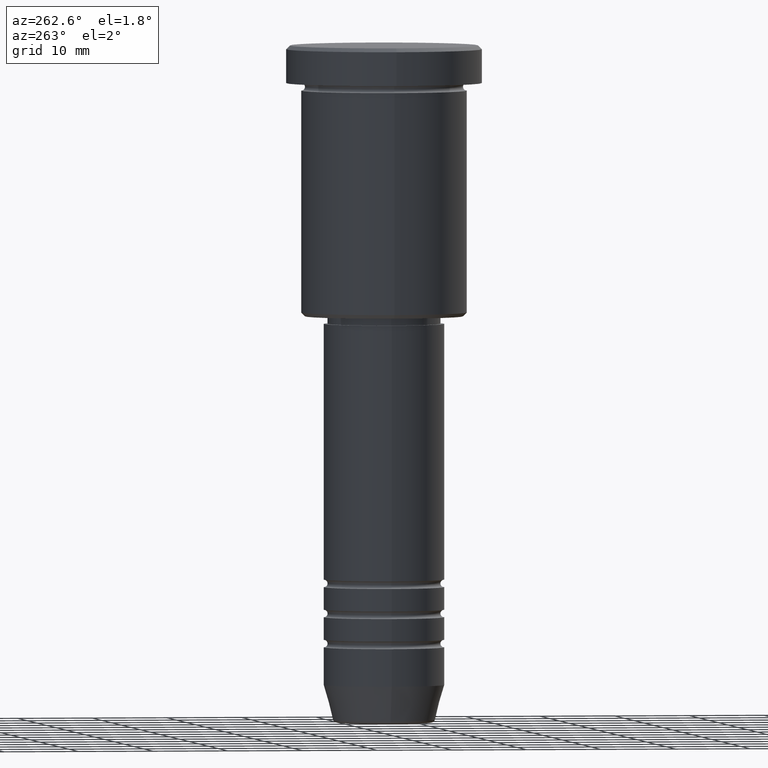
[diagram: clean part render]
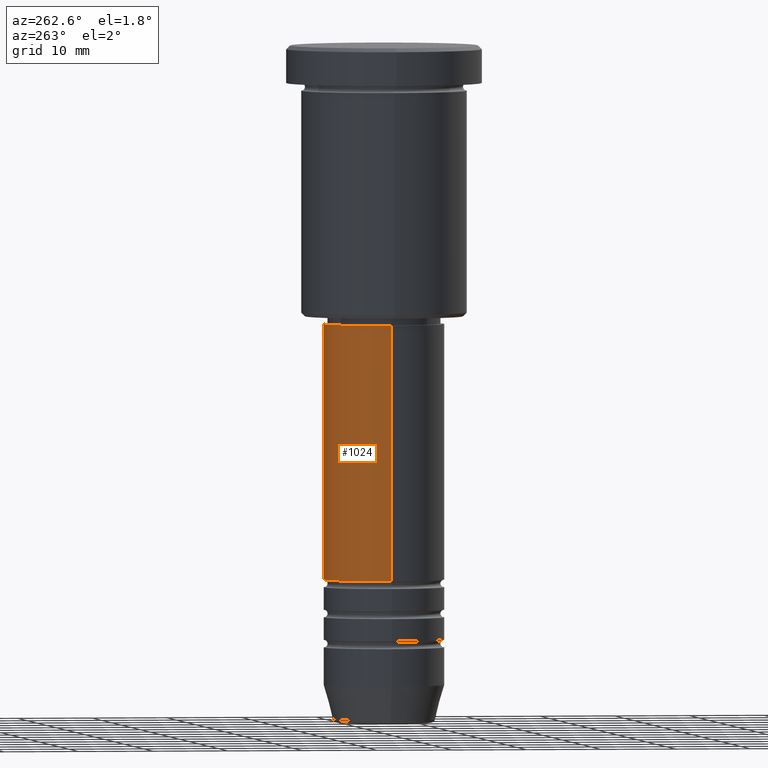
[diagram: same view with one face highlighted and labeled with its STEP entity id]
A machine part, auxiliary view. The second image highlights one B-rep face of the part: STEP entity #1024.
In plain terms, the highlighted cylindrical surface (partial cylindrical patch) has radius 8 mm, axis along (-0, -0, 1).
Its self-contained STEP definition (entity closure, byte-faithful):
#75 = ORIENTED_EDGE ( 'NONE', *, *, #90, .T. ) ;
#90 = EDGE_CURVE ( 'NONE', #677, #237, #281, .T. ) ;
#112 = EDGE_CURVE ( 'NONE', #807, #1122, #682, .T. ) ;
#155 = VECTOR ( 'NONE', #307, 1000.000000000000000 ) ;
#158 = EDGE_CURVE ( 'NONE', #677, #807, #832, .T. ) ;
#161 = CARTESIAN_POINT ( 'NONE',  ( 8.000000000000000000, 0.000000000000000000, -37.00000000000000711 ) ) ;
#207 = VECTOR ( 'NONE', #870, 1000.000000000000000 ) ;
#222 = CARTESIAN_POINT ( 'NONE',  ( 0.000000000000000000, 0.000000000000000000, 0.000000000000000000 ) ) ;
#228 = LINE ( 'NONE', #1133, #155 ) ;
#237 = VERTEX_POINT ( 'NONE', #1182 ) ;
#273 = ORIENTED_EDGE ( 'NONE', *, *, #952, .T. ) ;
#275 = DIRECTION ( 'NONE',  ( -0.000000000000000000, -0.000000000000000000, 1.000000000000000000 ) ) ;
#281 = CIRCLE ( 'NONE', #922, 8.000000000000000000 ) ;
#291 = DIRECTION ( 'NONE',  ( -0.000000000000000000, -0.000000000000000000, 1.000000000000000000 ) ) ;
#294 = DIRECTION ( 'NONE',  ( -0.000000000000000000, -0.000000000000000000, 1.000000000000000000 ) ) ;
#307 = DIRECTION ( 'NONE',  ( -0.000000000000000000, -0.000000000000000000, 1.000000000000000000 ) ) ;
#400 = ORIENTED_EDGE ( 'NONE', *, *, #158, .F. ) ;
#408 = CARTESIAN_POINT ( 'NONE',  ( 8.000000000000000000, 0.000000000000000000, 0.000000000000000000 ) ) ;
#435 = AXIS2_PLACEMENT_3D ( 'NONE', #1015, #291, #657 ) ;
#497 = EDGE_LOOP ( 'NONE', ( #75, #273, #803, #400 ) ) ;
#526 = DIRECTION ( 'NONE',  ( 1.000000000000000000, 0.000000000000000000, 0.000000000000000000 ) ) ;
#532 = CARTESIAN_POINT ( 'NONE',  ( -8.000000000000000000, 9.797174393178825657E-16, -37.00000000000000711 ) ) ;
#657 = DIRECTION ( 'NONE',  ( 1.000000000000000000, 0.000000000000000000, 0.000000000000000000 ) ) ;
#677 = VERTEX_POINT ( 'NONE', #877 ) ;
#682 = CIRCLE ( 'NONE', #435, 8.000000000000000000 ) ;
#755 = FACE_OUTER_BOUND ( 'NONE', #497, .T. ) ;
#803 = ORIENTED_EDGE ( 'NONE', *, *, #112, .F. ) ;
#807 = VERTEX_POINT ( 'NONE', #161 ) ;
#832 = LINE ( 'NONE', #408, #207 ) ;
#870 = DIRECTION ( 'NONE',  ( -0.000000000000000000, -0.000000000000000000, 1.000000000000000000 ) ) ;
#877 = CARTESIAN_POINT ( 'NONE',  ( 8.000000000000000000, 0.000000000000000000, -70.99999999999998579 ) ) ;
#922 = AXIS2_PLACEMENT_3D ( 'NONE', #1100, #275, #526 ) ;
#952 = EDGE_CURVE ( 'NONE', #237, #1122, #228, .T. ) ;
#1015 = CARTESIAN_POINT ( 'NONE',  ( 0.000000000000000000, 0.000000000000000000, -37.00000000000000711 ) ) ;
#1024 = ADVANCED_FACE ( 'NONE', ( #755 ), #1047, .T. ) ;
#1033 = DIRECTION ( 'NONE',  ( 1.000000000000000000, 0.000000000000000000, 0.000000000000000000 ) ) ;
#1047 = CYLINDRICAL_SURFACE ( 'NONE', #1129, 8.000000000000000000 ) ;
#1100 = CARTESIAN_POINT ( 'NONE',  ( 0.000000000000000000, 0.000000000000000000, -70.99999999999998579 ) ) ;
#1122 = VERTEX_POINT ( 'NONE', #532 ) ;
#1129 = AXIS2_PLACEMENT_3D ( 'NONE', #222, #294, #1033 ) ;
#1133 = CARTESIAN_POINT ( 'NONE',  ( -8.000000000000000000, 9.797174393178825657E-16, 0.000000000000000000 ) ) ;
#1182 = CARTESIAN_POINT ( 'NONE',  ( -8.000000000000000000, 9.797174393178825657E-16, -70.99999999999998579 ) ) ;